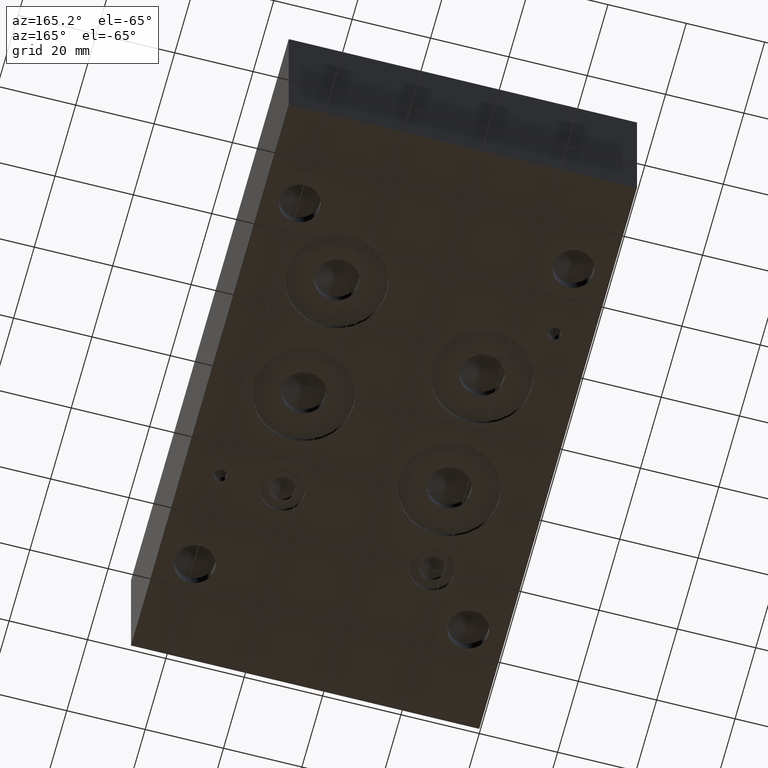
[diagram: clean part render]
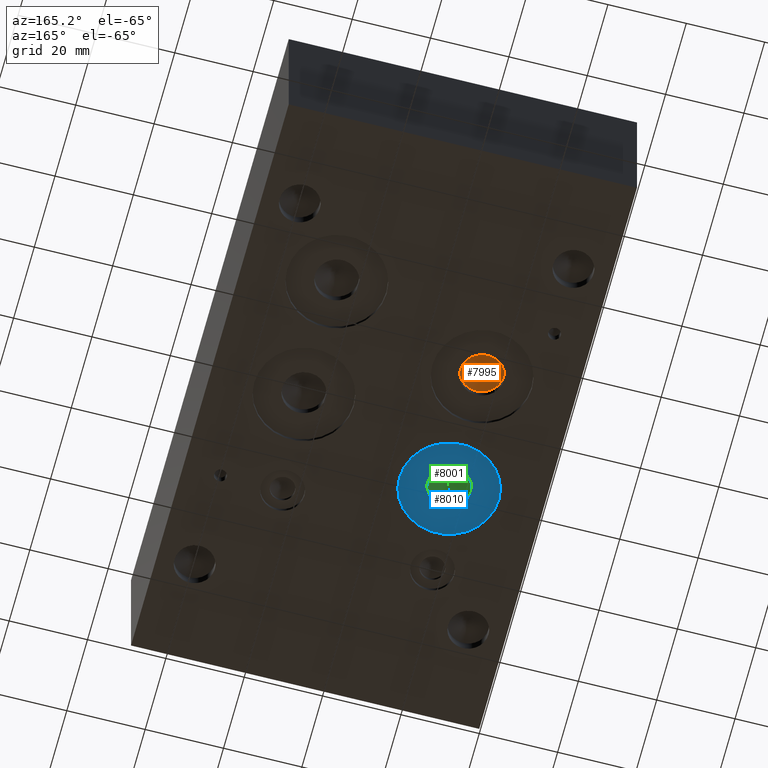
[diagram: same view with three faces highlighted in distinct colors, each labeled with its STEP entity id]
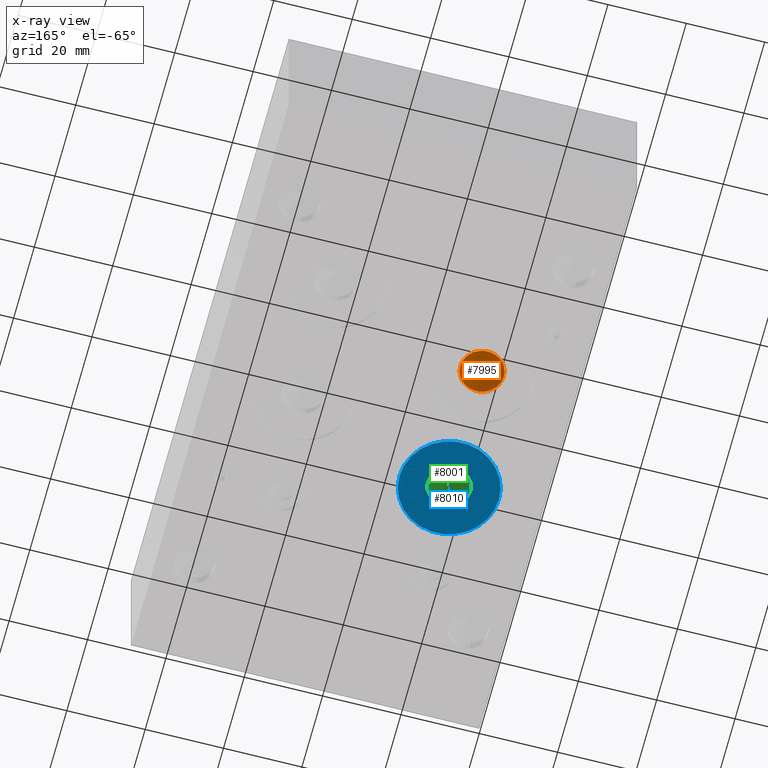
[diagram: x-ray of the same camera — body ghosted, the three highlighted faces saturated]
A machine part, auxiliary view with three faces highlighted in distinct colors.
The next image is the same camera in x-ray (body ghosted, the three faces saturated) — at least one of them is partly hidden behind the body in this view.
Their STEP definitions:

[orange] entity #7995 — the highlighted conical surface has half-angle 60 deg.
#68=CIRCLE('',#8358,5.5626);
#69=CIRCLE('',#8359,5.5626);
#202=CONICAL_SURFACE('',#8357,2.7813,1.0471975511966);
#853=FACE_OUTER_BOUND('',#1295,.T.);
#1295=EDGE_LOOP('',(#6672,#6673,#6674,#6675));
#2147=LINE('',#13149,#2951);
#2951=VECTOR('',#9849,2.7813);
#3623=VERTEX_POINT('',#13145);
#3624=VERTEX_POINT('',#13146);
#3625=VERTEX_POINT('',#13148);
#4683=EDGE_CURVE('',#3623,#3624,#68,.T.);
#4684=EDGE_CURVE('',#3624,#3625,#2147,.T.);
#4685=EDGE_CURVE('',#3624,#3623,#69,.T.);
#6672=ORIENTED_EDGE('',*,*,#4683,.T.);
#6673=ORIENTED_EDGE('',*,*,#4684,.T.);
#6674=ORIENTED_EDGE('',*,*,#4684,.F.);
#6675=ORIENTED_EDGE('',*,*,#4685,.T.);
#7995=ADVANCED_FACE('',(#853),#202,.F.);
#8357=AXIS2_PLACEMENT_3D('',#13144,#9845,#9846);
#8358=AXIS2_PLACEMENT_3D('',#13147,#9847,#9848);
#8359=AXIS2_PLACEMENT_3D('',#13150,#9850,#9851);
#9845=DIRECTION('center_axis',(0.,0.,-1.));
#9846=DIRECTION('ref_axis',(1.,0.,0.));
#9847=DIRECTION('center_axis',(0.,0.,-1.));
#9848=DIRECTION('ref_axis',(1.,0.,0.));
#9849=DIRECTION('',(0.866025403784439,-1.06057523872491E-16,0.5));
#9850=DIRECTION('center_axis',(0.,0.,-1.));
#9851=DIRECTION('ref_axis',(1.,0.,0.));
#13144=CARTESIAN_POINT('Origin',(23.8252,92.8624,4.81735430369711));
#13145=CARTESIAN_POINT('',(29.3878,92.8624,3.21157));
#13146=CARTESIAN_POINT('',(18.2626,92.8624,3.21157));
#13147=CARTESIAN_POINT('Origin',(23.8252,92.8624,3.21157));
#13148=CARTESIAN_POINT('',(23.8252,92.8624,6.42313860739421));
#13149=CARTESIAN_POINT('',(21.0439,92.8624,4.81735430369711));
#13150=CARTESIAN_POINT('Origin',(23.8252,92.8624,3.21157));

[blue] entity #8010 — the highlighted planar face has unit normal (0, 0, -1).
#79=CIRCLE('',#8376,5.5626);
#94=CIRCLE('',#8398,12.7);
#95=CIRCLE('',#8399,12.7);
#262=FACE_BOUND('',#1314,.T.);
#868=FACE_OUTER_BOUND('',#1313,.T.);
#1313=EDGE_LOOP('',(#6741,#6742));
#1314=EDGE_LOOP('',(#6743));
#3638=VERTEX_POINT('',#13185);
#3653=VERTEX_POINT('',#13226);
#3654=VERTEX_POINT('',#13228);
#4701=EDGE_CURVE('',#3638,#3638,#79,.T.);
#4721=EDGE_CURVE('',#3654,#3653,#94,.T.);
#4722=EDGE_CURVE('',#3653,#3654,#95,.T.);
#6741=ORIENTED_EDGE('',*,*,#4721,.T.);
#6742=ORIENTED_EDGE('',*,*,#4722,.T.);
#6743=ORIENTED_EDGE('',*,*,#4701,.T.);
#7336=PLANE('',#8400);
#8010=ADVANCED_FACE('',(#868,#262),#7336,.T.);
#8376=AXIS2_PLACEMENT_3D('',#13186,#9890,#9891);
#8398=AXIS2_PLACEMENT_3D('',#13229,#9939,#9940);
#8399=AXIS2_PLACEMENT_3D('',#13230,#9941,#9942);
#8400=AXIS2_PLACEMENT_3D('',#13231,#9943,#9944);
#9890=DIRECTION('center_axis',(0.,0.,1.));
#9891=DIRECTION('ref_axis',(1.,0.,0.));
#9939=DIRECTION('center_axis',(0.,0.,-1.));
#9940=DIRECTION('ref_axis',(1.,0.,0.));
#9941=DIRECTION('center_axis',(0.,0.,-1.));
#9942=DIRECTION('ref_axis',(1.,0.,0.));
#9943=DIRECTION('center_axis',(0.,0.,-1.));
#9944=DIRECTION('ref_axis',(1.,0.,0.));
#13185=CARTESIAN_POINT('',(18.2626,61.1124,1.016));
#13186=CARTESIAN_POINT('Origin',(23.8252,61.1124,1.016));
#13226=CARTESIAN_POINT('',(11.1252,61.1124,1.016));
#13228=CARTESIAN_POINT('',(36.5252,61.1124,1.016));
#13229=CARTESIAN_POINT('Origin',(23.8252,61.1124,1.016));
#13230=CARTESIAN_POINT('Origin',(23.8252,61.1124,1.016));
#13231=CARTESIAN_POINT('Origin',(23.8252,61.1124,1.016));

[green] entity #8001 — the highlighted conical surface has half-angle 60 deg.
#77=CIRCLE('',#8373,5.5626);
#78=CIRCLE('',#8374,5.5626);
#205=CONICAL_SURFACE('',#8372,2.7813,1.0471975511966);
#859=FACE_OUTER_BOUND('',#1301,.T.);
#1301=EDGE_LOOP('',(#6699,#6700,#6701,#6702));
#2153=LINE('',#13182,#2957);
#2957=VECTOR('',#9885,2.7813);
#3635=VERTEX_POINT('',#13178);
#3636=VERTEX_POINT('',#13179);
#3637=VERTEX_POINT('',#13181);
#4698=EDGE_CURVE('',#3635,#3636,#77,.T.);
#4699=EDGE_CURVE('',#3636,#3637,#2153,.T.);
#4700=EDGE_CURVE('',#3636,#3635,#78,.T.);
#6699=ORIENTED_EDGE('',*,*,#4698,.T.);
#6700=ORIENTED_EDGE('',*,*,#4699,.T.);
#6701=ORIENTED_EDGE('',*,*,#4699,.F.);
#6702=ORIENTED_EDGE('',*,*,#4700,.T.);
#8001=ADVANCED_FACE('',(#859),#205,.F.);
#8372=AXIS2_PLACEMENT_3D('',#13177,#9881,#9882);
#8373=AXIS2_PLACEMENT_3D('',#13180,#9883,#9884);
#8374=AXIS2_PLACEMENT_3D('',#13183,#9886,#9887);
#9881=DIRECTION('center_axis',(0.,0.,-1.));
#9882=DIRECTION('ref_axis',(1.,0.,0.));
#9883=DIRECTION('center_axis',(0.,0.,-1.));
#9884=DIRECTION('ref_axis',(1.,0.,0.));
#9885=DIRECTION('',(0.866025403784439,-1.06057523872491E-16,0.5));
#9886=DIRECTION('center_axis',(0.,0.,-1.));
#9887=DIRECTION('ref_axis',(1.,0.,0.));
#13177=CARTESIAN_POINT('Origin',(23.8252,61.1124,4.81735430369711));
#13178=CARTESIAN_POINT('',(29.3878,61.1124,3.21157));
#13179=CARTESIAN_POINT('',(18.2626,61.1124,3.21157));
#13180=CARTESIAN_POINT('Origin',(23.8252,61.1124,3.21157));
#13181=CARTESIAN_POINT('',(23.8252,61.1124,6.42313860739421));
#13182=CARTESIAN_POINT('',(21.0439,61.1124,4.81735430369711));
#13183=CARTESIAN_POINT('Origin',(23.8252,61.1124,3.21157));